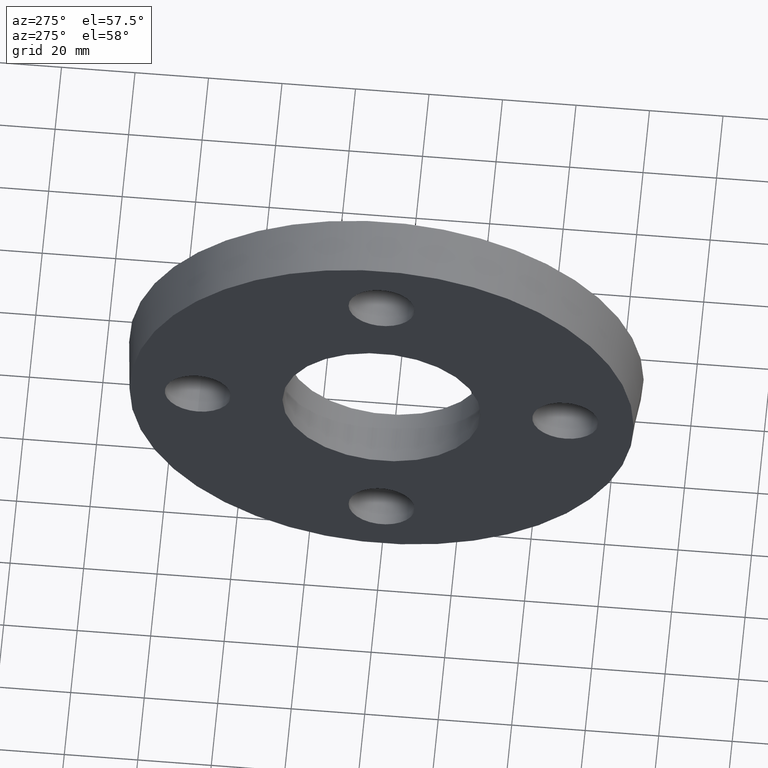
[diagram: clean part render]
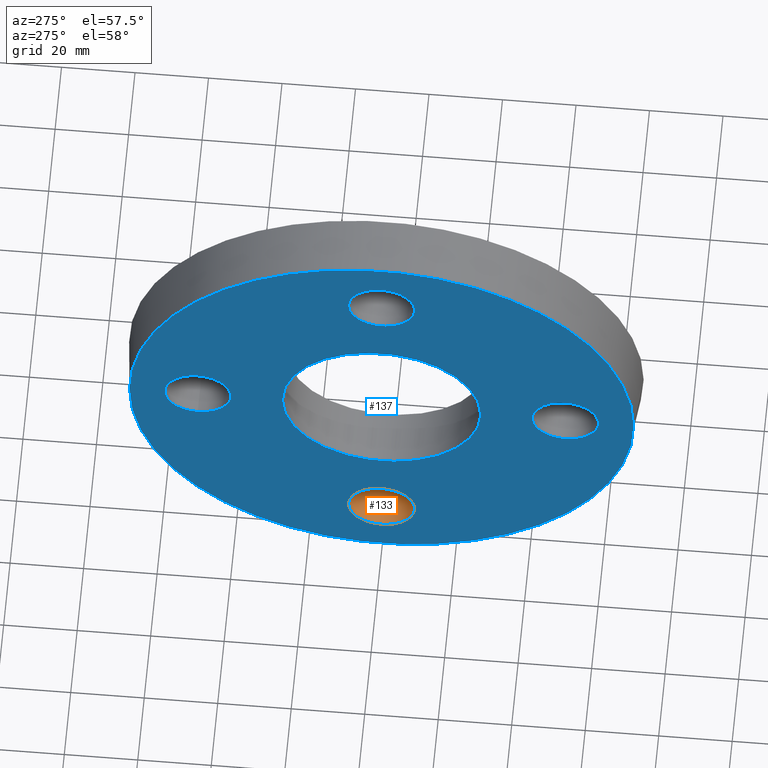
[diagram: same view with the hole feature highlighted: cylindrical wall and planar end face, labeled with their STEP entity ids]
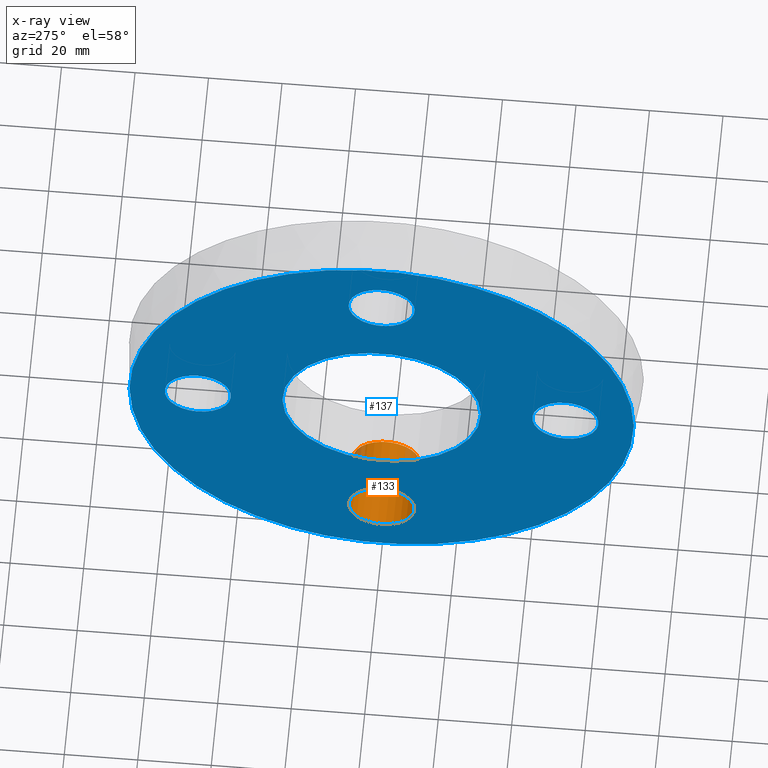
[diagram: x-ray of the same camera — body ghosted, the hole faces saturated]
A machine part, auxiliary view. The highlighted faces form one hole feature of diameter 18 mm: the cylindrical wall (entity #133, orange) and its adjacent planar end face (entity #137, blue) — they share a circular edge in the B-rep.
The next image is the same camera in x-ray (body ghosted, the hole faces saturated) — the bore reads through the body.
Wall:
#20=FACE_BOUND('',#47,.T.);
#36=FACE_OUTER_BOUND('',#46,.T.);
#46=EDGE_LOOP('',(#106));
#47=EDGE_LOOP('',(#107));
#70=CIRCLE('',#148,9.);
#71=CIRCLE('',#149,9.);
#82=VERTEX_POINT('',#215);
#83=VERTEX_POINT('',#217);
#94=EDGE_CURVE('',#82,#82,#70,.T.);
#95=EDGE_CURVE('',#83,#83,#71,.T.);
#106=ORIENTED_EDGE('',*,*,#94,.F.);
#107=ORIENTED_EDGE('',*,*,#95,.F.);
#128=CYLINDRICAL_SURFACE('',#147,9.);
#133=ADVANCED_FACE('',(#36,#20),#128,.F.);
#147=AXIS2_PLACEMENT_3D('',#214,#175,#176);
#148=AXIS2_PLACEMENT_3D('',#216,#177,#178);
#149=AXIS2_PLACEMENT_3D('',#218,#179,#180);
#175=DIRECTION('center_axis',(-1.,0.,0.));
#176=DIRECTION('ref_axis',(0.,1.,6.12323399573677E-17));
#177=DIRECTION('center_axis',(1.,0.,0.));
#178=DIRECTION('ref_axis',(0.,1.,6.12323399573677E-17));
#179=DIRECTION('center_axis',(-1.,0.,0.));
#180=DIRECTION('ref_axis',(0.,1.,6.12323399573677E-17));
#214=CARTESIAN_POINT('Origin',(7.5,3.06161699786838E-15,-50.));
#215=CARTESIAN_POINT('',(-7.5,-9.,-50.));
#216=CARTESIAN_POINT('Origin',(-7.5,3.06161699786838E-15,-50.));
#217=CARTESIAN_POINT('',(7.5,-9.,-50.));
#218=CARTESIAN_POINT('Origin',(7.5,3.06161699786838E-15,-50.));
End face:
#17=PLANE('',#158);
#28=FACE_BOUND('',#59,.T.);
#29=FACE_BOUND('',#60,.T.);
#30=FACE_BOUND('',#61,.T.);
#31=FACE_BOUND('',#62,.T.);
#32=FACE_BOUND('',#63,.T.);
#40=FACE_OUTER_BOUND('',#58,.T.);
#58=EDGE_LOOP('',(#118));
#59=EDGE_LOOP('',(#119));
#60=EDGE_LOOP('',(#120));
#61=EDGE_LOOP('',(#121));
#62=EDGE_LOOP('',(#122));
#63=EDGE_LOOP('',(#123));
#66=CIRCLE('',#142,9.);
#68=CIRCLE('',#145,9.);
#70=CIRCLE('',#148,9.);
#72=CIRCLE('',#151,9.);
#76=CIRCLE('',#157,68.6);
#77=CIRCLE('',#159,27.);
#78=VERTEX_POINT('',#205);
#80=VERTEX_POINT('',#210);
#82=VERTEX_POINT('',#215);
#84=VERTEX_POINT('',#220);
#88=VERTEX_POINT('',#230);
#89=VERTEX_POINT('',#233);
#90=EDGE_CURVE('',#78,#78,#66,.T.);
#92=EDGE_CURVE('',#80,#80,#68,.T.);
#94=EDGE_CURVE('',#82,#82,#70,.T.);
#96=EDGE_CURVE('',#84,#84,#72,.T.);
#100=EDGE_CURVE('',#88,#88,#76,.T.);
#101=EDGE_CURVE('',#89,#89,#77,.T.);
#118=ORIENTED_EDGE('',*,*,#100,.T.);
#119=ORIENTED_EDGE('',*,*,#90,.T.);
#120=ORIENTED_EDGE('',*,*,#92,.T.);
#121=ORIENTED_EDGE('',*,*,#94,.T.);
#122=ORIENTED_EDGE('',*,*,#96,.T.);
#123=ORIENTED_EDGE('',*,*,#101,.F.);
#137=ADVANCED_FACE('',(#40,#28,#29,#30,#31,#32),#17,.T.);
#142=AXIS2_PLACEMENT_3D('',#206,#165,#166);
#145=AXIS2_PLACEMENT_3D('',#211,#171,#172);
#148=AXIS2_PLACEMENT_3D('',#216,#177,#178);
#151=AXIS2_PLACEMENT_3D('',#221,#183,#184);
#157=AXIS2_PLACEMENT_3D('',#231,#195,#196);
#158=AXIS2_PLACEMENT_3D('',#232,#197,#198);
#159=AXIS2_PLACEMENT_3D('',#234,#199,#200);
#165=DIRECTION('center_axis',(1.,0.,0.));
#166=DIRECTION('ref_axis',(0.,-1.,-1.83697019872103E-16));
#171=DIRECTION('center_axis',(1.,0.,0.));
#172=DIRECTION('ref_axis',(0.,1.22464679914735E-16,-1.));
#177=DIRECTION('center_axis',(1.,0.,0.));
#178=DIRECTION('ref_axis',(0.,1.,6.12323399573677E-17));
#183=DIRECTION('center_axis',(1.,0.,0.));
#184=DIRECTION('ref_axis',(0.,0.,1.));
#195=DIRECTION('center_axis',(-1.,0.,0.));
#196=DIRECTION('ref_axis',(0.,0.,1.));
#197=DIRECTION('center_axis',(-1.,0.,0.));
#198=DIRECTION('ref_axis',(0.,0.,1.));
#199=DIRECTION('center_axis',(-1.,0.,0.));
#200=DIRECTION('ref_axis',(0.,0.,1.));
#205=CARTESIAN_POINT('',(-7.5,8.99999999999999,50.));
#206=CARTESIAN_POINT('Origin',(-7.5,-9.18485099360515E-15,50.));
#210=CARTESIAN_POINT('',(-7.5,-50.,8.99999999999999));
#211=CARTESIAN_POINT('Origin',(-7.5,-50.,-6.12323399573677E-15));
#215=CARTESIAN_POINT('',(-7.5,-9.,-50.));
#216=CARTESIAN_POINT('Origin',(-7.5,3.06161699786838E-15,-50.));
#220=CARTESIAN_POINT('',(-7.5,50.,-9.));
#221=CARTESIAN_POINT('Origin',(-7.5,50.,0.));
#230=CARTESIAN_POINT('',(-7.49999999999999,-68.6,0.));
#231=CARTESIAN_POINT('Origin',(-7.49999999999999,0.,0.));
#232=CARTESIAN_POINT('Origin',(-7.5,-27.,0.));
#233=CARTESIAN_POINT('',(-7.5,-27.,0.));
#234=CARTESIAN_POINT('Origin',(-7.5,0.,0.));